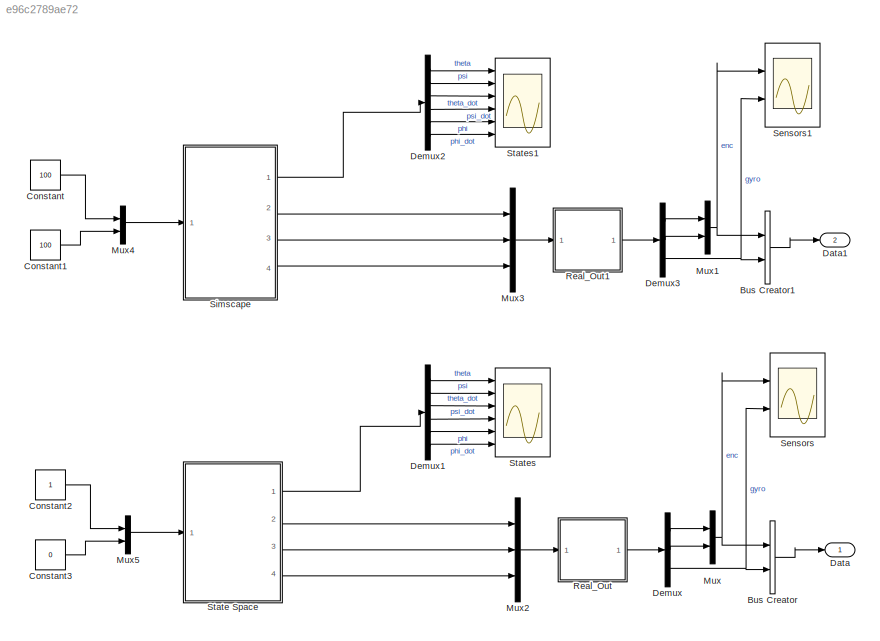
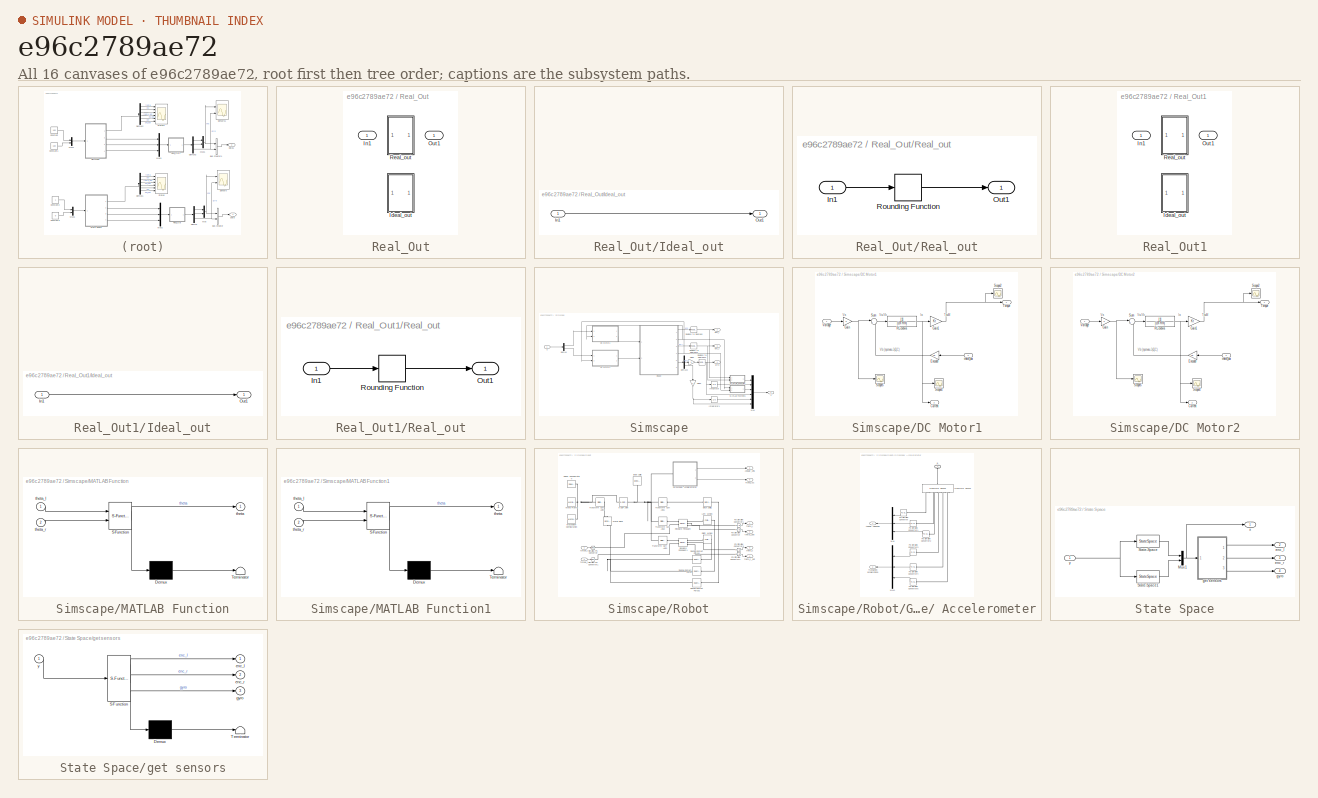
[diagram: thumbnail index - all 16 canvases of the model, root first then tree order]
MODEL slx_e96c2789ae72
KIND model
CONFIG AbsTol = auto
CONFIG EnableMultiTasking = off
CONFIG FixedStep = auto
CONFIG MaxStep = auto
CONFIG MinStep = auto
CONFIG RelTol = 1e-3
CONFIG SampleTimeConstraint = Unconstrained
CONFIG SolverName = ode45
CONFIG StartTime = 0.0
CONFIG StopTime = 10
BLOCK [BusCreator] Bus Creator
  DisplayOption = bar
  InheritFromInputs = on
  Inputs = 2
  OutDataTypeStr = Bus: Data
  Ports = [2, 1]
BLOCK [BusCreator] Bus Creator1
  DisplayOption = bar
  InheritFromInputs = on
  Inputs = 2
  OutDataTypeStr = Bus: Data
  Ports = [2, 1]
BLOCK [Constant] Constant
  Value = 100
BLOCK [Constant] Constant1
  Value = 100
BLOCK [Constant] Constant2
BLOCK [Constant] Constant3
  Value = 0
BLOCK [Outport] Data
BLOCK [Outport] Data1
  Port = 2
BLOCK [Demux] Demux
  Outputs = 3
  Ports = [1, 3]
BLOCK [Demux] Demux1
  Outputs = 6
  Ports = [1, 6]
BLOCK [Demux] Demux2
  Outputs = 6
  Ports = [1, 6]
BLOCK [Demux] Demux3
  Outputs = 3
  Ports = [1, 3]
BLOCK [Mux] Mux
  DisplayOption = bar
  Inputs = 2
  Ports = [2, 1]
BLOCK [Mux] Mux1
  DisplayOption = bar
  Inputs = 2
  Ports = [2, 1]
BLOCK [Mux] Mux2
  DisplayOption = bar
  Inputs = 3
  Ports = [3, 1]
BLOCK [Mux] Mux3
  DisplayOption = bar
  Inputs = 3
  Ports = [3, 1]
BLOCK [Mux] Mux4
  DisplayOption = bar
  Inputs = 2
  Ports = [2, 1]
BLOCK [Mux] Mux5
  DisplayOption = bar
  Inputs = 2
  Ports = [2, 1]
BLOCK [SubSystem] Real_Out
  Ports = [1, 1]
  RequestExecContextInheritance = off
  Variant = on
  VariantControl = Choice
BLOCK [SubSystem] Real_Out/Ideal_out
  Ports = [1, 1]
  RequestExecContextInheritance = off
  VariantControl = (default)
BLOCK [Inport] Real_Out/Ideal_out/In1
BLOCK [Outport] Real_Out/Ideal_out/Out1
BLOCK [Inport] Real_Out/In1
BLOCK [Outport] Real_Out/Out1
BLOCK [SubSystem] Real_Out/Real_out
  Ports = [1, 1]
  RequestExecContextInheritance = off
  VariantControl = real_model == 1
BLOCK [Inport] Real_Out/Real_out/In1
BLOCK [Outport] Real_Out/Real_out/Out1
BLOCK [Rounding] Real_Out/Real_out/Rounding Function
  Operator = round
BLOCK [SubSystem] Real_Out1
  Ports = [1, 1]
  RequestExecContextInheritance = off
  Variant = on
  VariantControl = Choice
BLOCK [SubSystem] Real_Out1/Ideal_out
  Ports = [1, 1]
  RequestExecContextInheritance = off
  VariantControl = (default)
BLOCK [Inport] Real_Out1/Ideal_out/In1
BLOCK [Outport] Real_Out1/Ideal_out/Out1
BLOCK [Inport] Real_Out1/In1
BLOCK [Outport] Real_Out1/Out1
BLOCK [SubSystem] Real_Out1/Real_out
  Ports = [1, 1]
  RequestExecContextInheritance = off
  VariantControl = real_model == 1
BLOCK [Inport] Real_Out1/Real_out/In1
BLOCK [Outport] Real_Out1/Real_out/Out1
BLOCK [Rounding] Real_Out1/Real_out/Rounding Function
  Operator = round
BLOCK [Scope] Sensors
  Floating = off
  NumInputPorts = 2
  Ports = [2]
  ScopeSpecificationString = Simulink.scopes.TimeScopeBlockCfg('CurrentConfiguration', extmgr.ConfigurationSet(extmgr.Configuration('Core','General UI',true),extmgr.Configuration('Core','Source UI',true),extmgr.Configuration('Sources','WiredSimulink',true,'DataLoggingVariableName','ScopeData2'),extmgr.Configuration('Visuals','Time Domain',true,'SerializedDisplays',{struct('MinYLimReal','-0.01037','MaxYLimReal','0.09332','YLab...<+1993ch>
BLOCK [Scope] Sensors1
  Floating = off
  NumInputPorts = 2
  Ports = [2]
  ScopeSpecificationString = Simulink.scopes.TimeScopeBlockCfg('CurrentConfiguration', extmgr.ConfigurationSet(extmgr.Configuration('Core','General UI',true),extmgr.Configuration('Core','Source UI',true),extmgr.Configuration('Sources','WiredSimulink',true),extmgr.Configuration('Visuals','Time Domain',true,'SerializedDisplays',{struct('MinYLimReal','-0.01257','MaxYLimReal','0.1131','YLabelReal','','MinYLimMag','0.00000','MaxYL...<+1955ch>
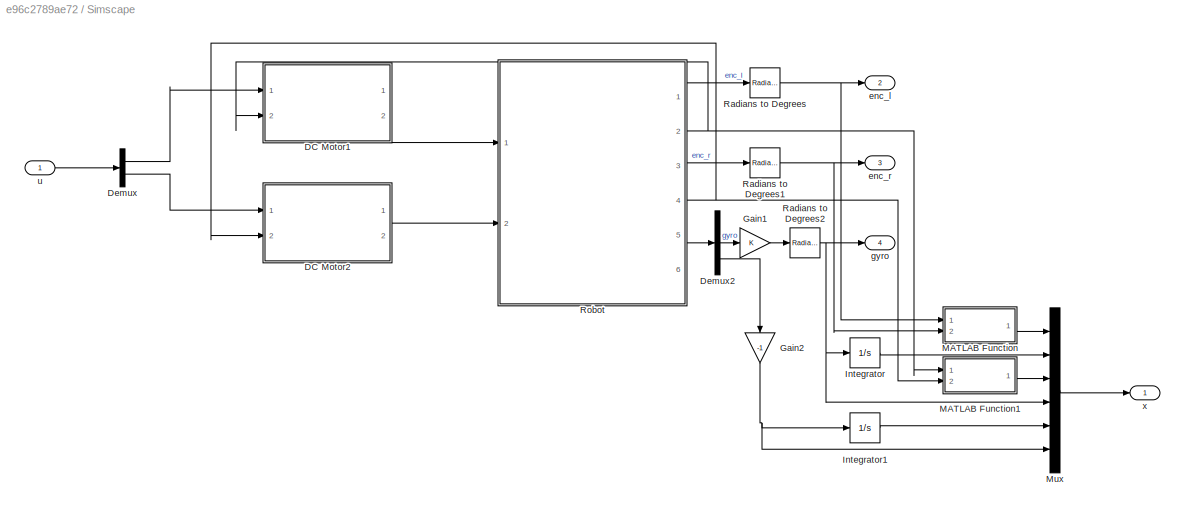
BLOCK [SubSystem] Simscape
  Ports = [1, 4]
  RequestExecContextInheritance = off
BLOCK [SubSystem] Simscape/DC Motor1
  Ports = [2, 2]
  RequestExecContextInheritance = off
BLOCK [Outport] Simscape/DC Motor1/Current
  Port = 2
BLOCK [Gain] Simscape/DC Motor1/Encoder
  Gain = Kb
BLOCK [Gain] Simscape/DC Motor1/Gain
BLOCK [Gain] Simscape/DC Motor1/Gain1
  Gain = Kt
BLOCK [TransferFcn] Simscape/DC Motor1/RL-схема
  Denominator = [Lm Rm]
BLOCK [Scope] Simscape/DC Motor1/Scope2
  Floating = off
  NumInputPorts = 1
  Ports = [1]
  ScopeSpecificationString = Simulink.scopes.TimeScopeBlockCfg('CurrentConfiguration', extmgr.ConfigurationSet(extmgr.Configuration('Core','General UI',true),extmgr.Configuration('Core','Source UI',true),extmgr.Configuration('Sources','WiredSimulink',true,'DataLoggingVariableName','ScopeData1','DataLoggingSaveFormat','StructureWithTime','DataLoggingDecimation','1','DataLoggingDecimateData',true),extmgr.Configuration('Visuals'...<+1665ch>
BLOCK [Scope] Simscape/DC Motor1/Scope4
  Floating = off
  NumInputPorts = 1
  Ports = [1]
  ScopeSpecificationString = Simulink.scopes.TimeScopeBlockCfg('CurrentConfiguration', extmgr.ConfigurationSet(extmgr.Configuration('Core','General UI',true),extmgr.Configuration('Core','Source UI',true),extmgr.Configuration('Sources','WiredSimulink',true,'DataLoggingVariableName','ScopeData5','DataLoggingSaveFormat','StructureWithTime','DataLoggingDecimation','1','DataLoggingDecimateData',true),extmgr.Configuration('Visuals'...<+1680ch>
BLOCK [Scope] Simscape/DC Motor1/Scope5
  Floating = off
  NumInputPorts = 1
  Ports = [1]
  ScopeSpecificationString = Simulink.scopes.TimeScopeBlockCfg('CurrentConfiguration', extmgr.ConfigurationSet(extmgr.Configuration('Core','General UI',true),extmgr.Configuration('Core','Source UI',true),extmgr.Configuration('Sources','WiredSimulink',true,'DataLoggingVariableName','ScopeData6','DataLoggingSaveFormat','StructureWithTime','DataLoggingDecimation','1','DataLoggingDecimateData',true),extmgr.Configuration('Visuals'...<+878ch>
BLOCK [Sum] Simscape/DC Motor1/Sum
  Inputs = |+-
  Ports = [2, 1]
BLOCK [Outport] Simscape/DC Motor1/Torque
BLOCK [Inport] Simscape/DC Motor1/Voltage
BLOCK [Inport] Simscape/DC Motor1/theta_dot
  Port = 2
BLOCK [SubSystem] Simscape/DC Motor2
  Ports = [2, 2]
  RequestExecContextInheritance = off
BLOCK [Outport] Simscape/DC Motor2/Current
  Port = 2
BLOCK [Gain] Simscape/DC Motor2/Encoder
  Gain = Kb
BLOCK [Gain] Simscape/DC Motor2/Gain
BLOCK [Gain] Simscape/DC Motor2/Gain1
  Gain = Kt
BLOCK [TransferFcn] Simscape/DC Motor2/RL-схема
  Denominator = [Lm Rm]
BLOCK [Scope] Simscape/DC Motor2/Scope2
  Floating = off
  NumInputPorts = 1
  Ports = [1]
  ScopeSpecificationString = Simulink.scopes.TimeScopeBlockCfg('CurrentConfiguration', extmgr.ConfigurationSet(extmgr.Configuration('Core','General UI',true),extmgr.Configuration('Core','Source UI',true),extmgr.Configuration('Sources','WiredSimulink',true,'DataLoggingVariableName','ScopeData1','DataLoggingSaveFormat','StructureWithTime','DataLoggingDecimation','1','DataLoggingDecimateData',true),extmgr.Configuration('Visuals'...<+1665ch>
BLOCK [Scope] Simscape/DC Motor2/Scope4
  Floating = off
  NumInputPorts = 1
  Ports = [1]
  ScopeSpecificationString = Simulink.scopes.TimeScopeBlockCfg('CurrentConfiguration', extmgr.ConfigurationSet(extmgr.Configuration('Core','General UI',true),extmgr.Configuration('Core','Source UI',true),extmgr.Configuration('Sources','WiredSimulink',true,'DataLoggingVariableName','ScopeData5','DataLoggingSaveFormat','StructureWithTime','DataLoggingDecimation','1','DataLoggingDecimateData',true),extmgr.Configuration('Visuals'...<+1680ch>
BLOCK [Scope] Simscape/DC Motor2/Scope5
  Floating = off
  NumInputPorts = 1
  Ports = [1]
  ScopeSpecificationString = Simulink.scopes.TimeScopeBlockCfg('CurrentConfiguration', extmgr.ConfigurationSet(extmgr.Configuration('Core','General UI',true),extmgr.Configuration('Core','Source UI',true),extmgr.Configuration('Sources','WiredSimulink',true,'DataLoggingVariableName','ScopeData6','DataLoggingSaveFormat','StructureWithTime','DataLoggingDecimation','1','DataLoggingDecimateData',true),extmgr.Configuration('Visuals'...<+878ch>
BLOCK [Sum] Simscape/DC Motor2/Sum
  Inputs = |+-
  Ports = [2, 1]
BLOCK [Outport] Simscape/DC Motor2/Torque
BLOCK [Inport] Simscape/DC Motor2/Voltage
BLOCK [Inport] Simscape/DC Motor2/theta_dot
  Port = 2
BLOCK [Demux] Simscape/Demux
  Outputs = 2
  Ports = [1, 2]
BLOCK [Demux] Simscape/Demux2
  Outputs = 3
  Ports = [1, 3]
BLOCK [Gain] Simscape/Gain1
BLOCK [Gain] Simscape/Gain2
  Gain = -1
  NameLocation = left
BLOCK [Integrator] Simscape/Integrator
  Ports = [1, 1]
BLOCK [Integrator] Simscape/Integrator1
  Ports = [1, 1]
BLOCK [SubSystem] Simscape/MATLAB Function
  ErrorFcn = Stateflow.Translate.translate
  PermitHierarchicalResolution = ExplicitOnly
  Ports = [2, 1]
  RequestExecContextInheritance = off
  SFBlockType = MATLAB Function
  TreatAsAtomicUnit = on
BLOCK [Demux] Simscape/MATLAB Function/ Demux 
  Outputs = 1
  Ports = [1, 1]
BLOCK [S-Function] Simscape/MATLAB Function/ SFunction 
  EnableBusSupport = on
  FunctionName = sf_sfun
  PortCounts = [2 2]
  Ports = [2, 2]
  SFcnIsStateOwnerBlock = off
  SFunctionDeploymentMode = off
  Tag = Stateflow S-Function 1
BLOCK [Terminator] Simscape/MATLAB Function/ Terminator 
BLOCK [Outport] Simscape/MATLAB Function/theta
BLOCK [Inport] Simscape/MATLAB Function/theta_l
BLOCK [Inport] Simscape/MATLAB Function/theta_r
  Port = 2
BLOCK [SubSystem] Simscape/MATLAB Function1
  ErrorFcn = Stateflow.Translate.translate
  PermitHierarchicalResolution = ExplicitOnly
  Ports = [2, 1]
  RequestExecContextInheritance = off
  SFBlockType = MATLAB Function
  TreatAsAtomicUnit = on
BLOCK [Demux] Simscape/MATLAB Function1/ Demux 
  Outputs = 1
  Ports = [1, 1]
BLOCK [S-Function] Simscape/MATLAB Function1/ SFunction 
  EnableBusSupport = on
  FunctionName = sf_sfun
  PortCounts = [2 2]
  Ports = [2, 2]
  SFcnIsStateOwnerBlock = off
  SFunctionDeploymentMode = off
  Tag = Stateflow S-Function 3
BLOCK [Terminator] Simscape/MATLAB Function1/ Terminator 
BLOCK [Outport] Simscape/MATLAB Function1/theta
BLOCK [Inport] Simscape/MATLAB Function1/theta_l
BLOCK [Inport] Simscape/MATLAB Function1/theta_r
  Port = 2
BLOCK [Mux] Simscape/Mux
  DisplayOption = bar
  Inputs = 6
  Ports = [6, 1]
BLOCK [Reference] Simscape/Radians to Degrees  REF=simulink_extras/Transformations/Radians
to Degrees
  Ports = [1, 1]
  SourceBlock = simulink_extras/Transformations/Radians\nto Degrees
  SourceProductBaseCode = SL
  SourceType = RadiansToDegrees
BLOCK [Reference] Simscape/Radians to Degrees1  REF=simulink_extras/Transformations/Radians
to Degrees
  Ports = [1, 1]
  SourceBlock = simulink_extras/Transformations/Radians\nto Degrees
  SourceProductBaseCode = SL
  SourceType = RadiansToDegrees
BLOCK [Reference] Simscape/Radians to Degrees2  REF=simulink_extras/Transformations/Radians
to Degrees
  Ports = [1, 1]
  SourceBlock = simulink_extras/Transformations/Radians\nto Degrees
  SourceProductBaseCode = SL
  SourceType = RadiansToDegrees
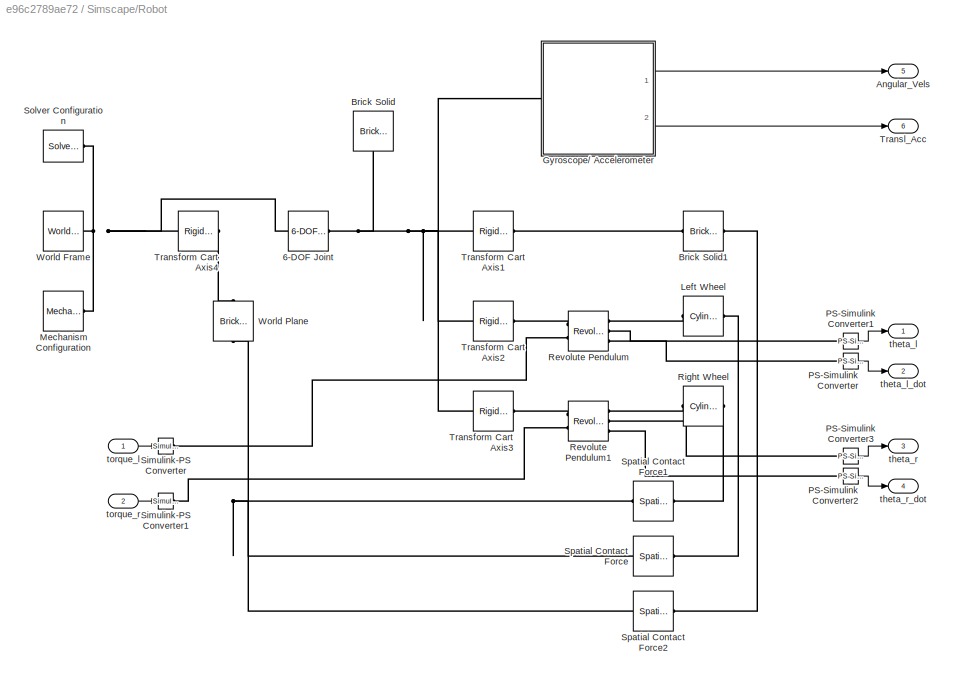
BLOCK [SubSystem] Simscape/Robot
  Ports = [2, 6]
  RequestExecContextInheritance = off
BLOCK [Reference] Simscape/Robot/6-DOF Joint  REF=sm_lib/Joints/6-DOF Joint
  Ports = [0, 0, 0, 0, 0, 1, 1]
  SourceBlock = sm_lib/Joints/6-DOF Joint
  SourceProductBaseCode = MS
  SourceType = 6-DOF Joint
BLOCK [Outport] Simscape/Robot/Angular_Vels
  Port = 5
BLOCK [Reference] Simscape/Robot/Brick Solid  REF=sm_lib/Body Elements/Brick Solid
  NameLocation = left
  Ports = [0, 0, 0, 0, 0, 0, 1]
  SourceBlock = sm_lib/Body Elements/Brick Solid
  SourceProductBaseCode = MS
  SourceType = Brick Solid
BLOCK [Reference] Simscape/Robot/Brick Solid1  REF=sm_lib/Body Elements/Brick Solid
  NameLocation = top
  Ports = [0, 0, 0, 0, 0, 1, 1]
  SourceBlock = sm_lib/Body Elements/Brick Solid
  SourceProductBaseCode = MS
  SourceType = Brick Solid
BLOCK [SubSystem] Simscape/Robot/Gyroscope// Accelerometer
  Ports = [0, 2, 0, 0, 0, 1]
  RequestExecContextInheritance = off
BLOCK [Outport] Simscape/Robot/Gyroscope// Accelerometer/Angular velocities
BLOCK [PMIOPort] Simscape/Robot/Gyroscope// Accelerometer/B
  NameLocation = right
  Side = Left
BLOCK [Mux] Simscape/Robot/Gyroscope// Accelerometer/Mux
  DisplayOption = bar
  Inputs = 3
  NameLocation = top
  Ports = [3, 1]
BLOCK [Mux] Simscape/Robot/Gyroscope// Accelerometer/Mux1
  DisplayOption = bar
  Inputs = 3
  NameLocation = top
  Ports = [3, 1]
BLOCK [Reference] Simscape/Robot/Gyroscope// Accelerometer/PS-Simulink Converter  REF=nesl_utility/PS-Simulink
Converter
  Ports = [0, 1, 0, 0, 0, 1]
  SourceBlock = nesl_utility/PS-Simulink\nConverter
  SourceProductBaseCode = PW,SS
  SourceType = PS-Simulink\nConverter
BLOCK [Reference] Simscape/Robot/Gyroscope// Accelerometer/PS-Simulink Converter1  REF=nesl_utility/PS-Simulink
Converter
  Ports = [0, 1, 0, 0, 0, 1]
  SourceBlock = nesl_utility/PS-Simulink\nConverter
  SourceProductBaseCode = PW,SS
  SourceType = PS-Simulink\nConverter
BLOCK [Reference] Simscape/Robot/Gyroscope// Accelerometer/PS-Simulink Converter2  REF=nesl_utility/PS-Simulink
Converter
  Ports = [0, 1, 0, 0, 0, 1]
  SourceBlock = nesl_utility/PS-Simulink\nConverter
  SourceProductBaseCode = PW,SS
  SourceType = PS-Simulink\nConverter
BLOCK [Reference] Simscape/Robot/Gyroscope// Accelerometer/PS-Simulink Converter3  REF=nesl_utility/PS-Simulink
Converter
  Ports = [0, 1, 0, 0, 0, 1]
  SourceBlock = nesl_utility/PS-Simulink\nConverter
  SourceProductBaseCode = PW,SS
  SourceType = PS-Simulink\nConverter
BLOCK [Reference] Simscape/Robot/Gyroscope// Accelerometer/PS-Simulink Converter4  REF=nesl_utility/PS-Simulink
Converter
  Ports = [0, 1, 0, 0, 0, 1]
  SourceBlock = nesl_utility/PS-Simulink\nConverter
  SourceProductBaseCode = PW,SS
  SourceType = PS-Simulink\nConverter
BLOCK [Reference] Simscape/Robot/Gyroscope// Accelerometer/PS-Simulink Converter5  REF=nesl_utility/PS-Simulink
Converter
  Ports = [0, 1, 0, 0, 0, 1]
  SourceBlock = nesl_utility/PS-Simulink\nConverter
  SourceProductBaseCode = PW,SS
  SourceType = PS-Simulink\nConverter
BLOCK [Reference] Simscape/Robot/Gyroscope// Accelerometer/Transform Sensor  REF=sm_lib/Frames and
Transforms/Transform
Sensor
  NameLocation = left
  Ports = [0, 0, 0, 0, 0, 1, 7]
  SourceBlock = sm_lib/Frames and\nTransforms/Transform\nSensor
  SourceProductBaseCode = MS
  SourceType = Transform\nSensor
BLOCK [Outport] Simscape/Robot/Gyroscope// Accelerometer/Translation accelerations
  Port = 2
BLOCK [Reference] Simscape/Robot/Left Wheel  REF=sm_lib/Body Elements/Cylindrical Solid
  NameLocation = top
  Ports = [0, 0, 0, 0, 0, 1, 1]
  SourceBlock = sm_lib/Body Elements/Cylindrical Solid
  SourceProductBaseCode = MS
  SourceType = Cylindrical Solid
BLOCK [Reference] Simscape/Robot/Mechanism Configuration  REF=sm_lib/Utilities/Mechanism
Configuration
  Ports = [0, 0, 0, 0, 0, 0, 1]
  SourceBlock = sm_lib/Utilities/Mechanism\nConfiguration
  SourceProductBaseCode = MS
  SourceType = Mechanism\nConfiguration
BLOCK [Reference] Simscape/Robot/PS-Simulink Converter  REF=nesl_utility/PS-Simulink
Converter
  Ports = [0, 1, 0, 0, 0, 1]
  SourceBlock = nesl_utility/PS-Simulink\nConverter
  SourceProductBaseCode = SS,PW,VE
  SourceType = PS-Simulink\nConverter
BLOCK [Reference] Simscape/Robot/PS-Simulink Converter1  REF=nesl_utility/PS-Simulink
Converter
  Ports = [0, 1, 0, 0, 0, 1]
  SourceBlock = nesl_utility/PS-Simulink\nConverter
  SourceProductBaseCode = SS,PW,VE
  SourceType = PS-Simulink\nConverter
BLOCK [Reference] Simscape/Robot/PS-Simulink Converter2  REF=nesl_utility/PS-Simulink
Converter
  Ports = [0, 1, 0, 0, 0, 1]
  SourceBlock = nesl_utility/PS-Simulink\nConverter
  SourceProductBaseCode = SS,PW,VE
  SourceType = PS-Simulink\nConverter
BLOCK [Reference] Simscape/Robot/PS-Simulink Converter3  REF=nesl_utility/PS-Simulink
Converter
  Ports = [0, 1, 0, 0, 0, 1]
  SourceBlock = nesl_utility/PS-Simulink\nConverter
  SourceProductBaseCode = SS,PW,VE
  SourceType = PS-Simulink\nConverter
BLOCK [Reference] Simscape/Robot/Revolute Pendulum  REF=sm_lib/Joints/Revolute Joint
  Ports = [0, 0, 0, 0, 0, 2, 3]
  SourceBlock = sm_lib/Joints/Revolute Joint
  SourceProductBaseCode = MS
  SourceType = Revolute Joint
BLOCK [Reference] Simscape/Robot/Revolute Pendulum1  REF=sm_lib/Joints/Revolute Joint
  Ports = [0, 0, 0, 0, 0, 2, 3]
  SourceBlock = sm_lib/Joints/Revolute Joint
  SourceProductBaseCode = MS
  SourceType = Revolute Joint
BLOCK [Reference] Simscape/Robot/Right Wheel  REF=sm_lib/Body Elements/Cylindrical Solid
  NameLocation = top
  Ports = [0, 0, 0, 0, 0, 1, 1]
  SourceBlock = sm_lib/Body Elements/Cylindrical Solid
  SourceProductBaseCode = MS
  SourceType = Cylindrical Solid
BLOCK [Reference] Simscape/Robot/Simulink-PS Converter  REF=nesl_utility/Simulink-PS
Converter
  Ports = [1, 0, 0, 0, 0, 0, 1]
  SourceBlock = nesl_utility/Simulink-PS\nConverter
  SourceProductBaseCode = SS,PW,VE
  SourceType = Simulink-PS\nConverter
BLOCK [Reference] Simscape/Robot/Simulink-PS Converter1  REF=nesl_utility/Simulink-PS
Converter
  Ports = [1, 0, 0, 0, 0, 0, 1]
  SourceBlock = nesl_utility/Simulink-PS\nConverter
  SourceProductBaseCode = SS,PW,VE
  SourceType = Simulink-PS\nConverter
BLOCK [Reference] Simscape/Robot/Solver Configuration  REF=nesl_utility/Solver
Configuration
  Ports = [0, 0, 0, 0, 0, 0, 1]
  SourceBlock = nesl_utility/Solver\nConfiguration
  SourceProductBaseCode = SS,PW,VE
  SourceType = Solver\nConfiguration
BLOCK [Reference] Simscape/Robot/Spatial Contact Force  REF=sm_lib/Forces and
Torques/Spatial
Contact Force
  Ports = [0, 0, 0, 0, 0, 1, 1]
  SourceBlock = sm_lib/Forces and\nTorques/Spatial\nContact Force
  SourceProductBaseCode = MS
  SourceType = Spatial\nContact Force
BLOCK [Reference] Simscape/Robot/Spatial Contact Force1  REF=sm_lib/Forces and
Torques/Spatial
Contact Force
  Ports = [0, 0, 0, 0, 0, 1, 1]
  SourceBlock = sm_lib/Forces and\nTorques/Spatial\nContact Force
  SourceProductBaseCode = MS
  SourceType = Spatial\nContact Force
BLOCK [Reference] Simscape/Robot/Spatial Contact Force2  REF=sm_lib/Forces and
Torques/Spatial
Contact Force
  Ports = [0, 0, 0, 0, 0, 1, 1]
  SourceBlock = sm_lib/Forces and\nTorques/Spatial\nContact Force
  SourceProductBaseCode = MS
  SourceType = Spatial\nContact Force
BLOCK [Reference] Simscape/Robot/Transform Cart Axis1  REF=sm_lib/Frames and
Transforms/Rigid
Transform
  Ports = [0, 0, 0, 0, 0, 1, 1]
  SourceBlock = sm_lib/Frames and\nTransforms/Rigid\nTransform
  SourceProductBaseCode = MS
  SourceType = Rigid\nTransform
BLOCK [Reference] Simscape/Robot/Transform Cart Axis2  REF=sm_lib/Frames and
Transforms/Rigid
Transform
  Ports = [0, 0, 0, 0, 0, 1, 1]
  SourceBlock = sm_lib/Frames and\nTransforms/Rigid\nTransform
  SourceProductBaseCode = MS
  SourceType = Rigid\nTransform
BLOCK [Reference] Simscape/Robot/Transform Cart Axis3  REF=sm_lib/Frames and
Transforms/Rigid
Transform
  Ports = [0, 0, 0, 0, 0, 1, 1]
  SourceBlock = sm_lib/Frames and\nTransforms/Rigid\nTransform
  SourceProductBaseCode = MS
  SourceType = Rigid\nTransform
BLOCK [Reference] Simscape/Robot/Transform Cart Axis4  REF=sm_lib/Frames and
Transforms/Rigid
Transform
  Ports = [0, 0, 0, 0, 0, 1, 1]
  SourceBlock = sm_lib/Frames and\nTransforms/Rigid\nTransform
  SourceProductBaseCode = MS
  SourceType = Rigid\nTransform
BLOCK [Outport] Simscape/Robot/Transl_Acc
  Port = 6
BLOCK [Reference] Simscape/Robot/World Frame  REF=sm_lib/Frames and
Transforms/World Frame
  Ports = [0, 0, 0, 0, 0, 0, 1]
  SourceBlock = sm_lib/Frames and\nTransforms/World Frame
  SourceProductBaseCode = MS
  SourceType = World Frame
BLOCK [Reference] Simscape/Robot/World Plane  REF=sm_lib/Body Elements/Brick Solid
  NameLocation = right
  Ports = [0, 0, 0, 0, 0, 1, 1]
  SourceBlock = sm_lib/Body Elements/Brick Solid
  SourceProductBaseCode = MS
  SourceType = Brick Solid
BLOCK [Outport] Simscape/Robot/theta_l
BLOCK [Outport] Simscape/Robot/theta_l_dot
  Port = 2
BLOCK [Outport] Simscape/Robot/theta_r
  Port = 3
BLOCK [Outport] Simscape/Robot/theta_r_dot
  Port = 4
BLOCK [Inport] Simscape/Robot/torque_l
BLOCK [Inport] Simscape/Robot/torque_r
  Port = 2
BLOCK [Outport] Simscape/enc_l
  Port = 2
BLOCK [Outport] Simscape/enc_r
  Port = 3
BLOCK [Outport] Simscape/gyro
  Port = 4
BLOCK [Inport] Simscape/u
BLOCK [Outport] Simscape/x
BLOCK [SubSystem] State Space
  Ports = [1, 4]
  RequestExecContextInheritance = off
BLOCK [Mux] State Space/Mux1
  DisplayOption = bar
  Inputs = 2
  Ports = [2, 1]
BLOCK [StateSpace] State Space/State-Space
  A = A1
  B = B1
  C = C1
  D = D1
  InitialCondition = 0
  Ports = [1, 1]
BLOCK [StateSpace] State Space/State-Space1
  A = A2
  B = B2
  C = C2
  D = D2
  InitialCondition = 0
  Ports = [1, 1]
BLOCK [Outport] State Space/enc_l
  Port = 2
BLOCK [Outport] State Space/enc_r
  Port = 3
BLOCK [SubSystem] State Space/get sensors
  ErrorFcn = Stateflow.Translate.translate
  PermitHierarchicalResolution = ExplicitOnly
  Ports = [1, 3]
  RequestExecContextInheritance = off
  SFBlockType = MATLAB Function
  TreatAsAtomicUnit = on
BLOCK [Demux] State Space/get sensors/ Demux 
  Outputs = 1
  Ports = [1, 1]
BLOCK [S-Function] State Space/get sensors/ SFunction 
  EnableBusSupport = on
  FunctionName = sf_sfun
  Parameters = R,W
  PortCounts = [1 4]
  Ports = [1, 4]
  SFcnIsStateOwnerBlock = off
  SFunctionDeploymentMode = off
  Tag = Stateflow S-Function 2
BLOCK [Terminator] State Space/get sensors/ Terminator 
BLOCK [Outport] State Space/get sensors/enc_l
  VectorParamsAs1DForOutWhenUnconnected = off
BLOCK [Outport] State Space/get sensors/enc_r
  Port = 2
  VectorParamsAs1DForOutWhenUnconnected = off
BLOCK [Outport] State Space/get sensors/gyro
  Port = 3
  VectorParamsAs1DForOutWhenUnconnected = off
BLOCK [Inport] State Space/get sensors/y
BLOCK [Outport] State Space/gyro
  Port = 4
BLOCK [Outport] State Space/x
BLOCK [Inport] State Space/y
BLOCK [Scope] States
  Floating = off
  NumInputPorts = 6
  Ports = [6]
  ScopeSpecificationString = Simulink.scopes.TimeScopeBlockCfg('CurrentConfiguration', extmgr.ConfigurationSet(extmgr.Configuration('Core','General UI',true),extmgr.Configuration('Core','Source UI',true),extmgr.Configuration('Sources','WiredSimulink',true,'DataLoggingVariableName','ScopeData3'),extmgr.Configuration('Visuals','Time Domain',true,'SerializedDisplays',{struct('MinYLimReal','-0.00011','MaxYLimReal','0.00095','YLab...<+5185ch>
BLOCK [Scope] States1
  Floating = off
  NumInputPorts = 6
  Ports = [6]
  ScopeSpecificationString = Simulink.scopes.TimeScopeBlockCfg('CurrentConfiguration', extmgr.ConfigurationSet(extmgr.Configuration('Core','General UI',true),extmgr.Configuration('Core','Source UI',true),extmgr.Configuration('Sources','WiredSimulink',true,'DataLoggingVariableName','ScopeData4'),extmgr.Configuration('Visuals','Time Domain',true,'SerializedDisplays',{struct('MinYLimReal','-0.36026','MaxYLimReal','3.24236','YLab...<+5187ch>
ANNOTATION Simscape/DC Motor1: Ia
ANNOTATION Simscape/DC Motor1: TauM
ANNOTATION Simscape/DC Motor1: Va
ANNOTATION Simscape/DC Motor1: Va-Vb
ANNOTATION Simscape/DC Motor1: Vb (противо-ЭДС)
ANNOTATION Simscape/DC Motor2: Ia
ANNOTATION Simscape/DC Motor2: TauM
ANNOTATION Simscape/DC Motor2: Va
ANNOTATION Simscape/DC Motor2: Va-Vb
ANNOTATION Simscape/DC Motor2: Vb (противо-ЭДС)
LINE Bus Creator1:1 -> Data1:1
LINE Bus Creator:1 -> Data:1
LINE Constant1:1 -> Mux4:2
LINE Constant2:1 -> Mux5:1
LINE Constant3:1 -> Mux5:2
LINE Constant:1 -> Mux4:1
LINE Demux1:1 -> States:1
LINE Demux1:2 -> States:2
LINE Demux1:3 -> States:3
LINE Demux1:4 -> States:4
LINE Demux1:5 -> States:5
LINE Demux1:6 -> States:6
LINE Demux2:1 -> States1:1
LINE Demux2:2 -> States1:2
LINE Demux2:3 -> States1:3
LINE Demux2:4 -> States1:4
LINE Demux2:5 -> States1:5
LINE Demux2:6 -> States1:6
LINE Demux3:1 -> Mux1:1
LINE Demux3:2 -> Mux1:2
NET Demux3:3 -> Bus Creator1:2, Sensors1:2
LINE Demux:1 -> Mux:1
LINE Demux:2 -> Mux:2
NET Demux:3 -> Bus Creator:2, Sensors:2
NET Mux1:1 -> Bus Creator1:1, Sensors1:1
LINE Mux2:1 -> Real_Out:1
LINE Mux3:1 -> Real_Out1:1
LINE Mux4:1 -> Simscape:1
LINE Mux5:1 -> State Space:1
NET Mux:1 -> Bus Creator:1, Sensors:1
LINE Real_Out/Ideal_out/In1:1 -> Real_Out/Ideal_out/Out1:1
LINE Real_Out/Real_out/In1:1 -> Real_Out/Real_out/Rounding Function:1
LINE Real_Out/Real_out/Rounding Function:1 -> Real_Out/Real_out/Out1:1
LINE Real_Out1/Ideal_out/In1:1 -> Real_Out1/Ideal_out/Out1:1
LINE Real_Out1/Real_out/In1:1 -> Real_Out1/Real_out/Rounding Function:1
LINE Real_Out1/Real_out/Rounding Function:1 -> Real_Out1/Real_out/Out1:1
LINE Real_Out1:1 -> Demux3:1
LINE Real_Out:1 -> Demux:1
LINE Simscape/DC Motor1/Encoder:1 -> Simscape/DC Motor1/Sum:2
NET Simscape/DC Motor1/Gain1:1 -> Simscape/DC Motor1/Scope2:1, Simscape/DC Motor1/Torque:1
NET Simscape/DC Motor1/Gain:1 -> Simscape/DC Motor1/Scope5:1, Simscape/DC Motor1/Sum:1
NET Simscape/DC Motor1/RL-схема:1 -> Simscape/DC Motor1/Current:1, Simscape/DC Motor1/Gain1:1, Simscape/DC Motor1/Scope4:1
LINE Simscape/DC Motor1/Sum:1 -> Simscape/DC Motor1/RL-схема:1
LINE Simscape/DC Motor1/Voltage:1 -> Simscape/DC Motor1/Gain:1
LINE Simscape/DC Motor1/theta_dot:1 -> Simscape/DC Motor1/Encoder:1
LINE Simscape/DC Motor1:2 -> Simscape/Robot:1
LINE Simscape/DC Motor2/Encoder:1 -> Simscape/DC Motor2/Sum:2
NET Simscape/DC Motor2/Gain1:1 -> Simscape/DC Motor2/Scope2:1, Simscape/DC Motor2/Torque:1
NET Simscape/DC Motor2/Gain:1 -> Simscape/DC Motor2/Scope5:1, Simscape/DC Motor2/Sum:1
NET Simscape/DC Motor2/RL-схема:1 -> Simscape/DC Motor2/Current:1, Simscape/DC Motor2/Gain1:1, Simscape/DC Motor2/Scope4:1
LINE Simscape/DC Motor2/Sum:1 -> Simscape/DC Motor2/RL-схема:1
LINE Simscape/DC Motor2/Voltage:1 -> Simscape/DC Motor2/Gain:1
LINE Simscape/DC Motor2/theta_dot:1 -> Simscape/DC Motor2/Encoder:1
LINE Simscape/DC Motor2:2 -> Simscape/Robot:2
LINE Simscape/Demux2:2 -> Simscape/Gain1:1
LINE Simscape/Demux2:3 -> Simscape/Gain2:1
LINE Simscape/Demux:1 -> Simscape/DC Motor1:1
LINE Simscape/Demux:2 -> Simscape/DC Motor2:1
LINE Simscape/Gain1:1 -> Simscape/Radians to Degrees2:1
NET Simscape/Gain2:1 -> Simscape/Integrator1:1, Simscape/Mux:6
LINE Simscape/Integrator1:1 -> Simscape/Mux:5
LINE Simscape/Integrator:1 -> Simscape/Mux:2
LINE Simscape/MATLAB Function1:1 -> Simscape/Mux:3
LINE Simscape/MATLAB Function:1 -> Simscape/Mux:1
LINE Simscape/Mux:1 -> Simscape/x:1
NET Simscape/Radians to Degrees1:1 -> Simscape/MATLAB Function:2, Simscape/enc_r:1
NET Simscape/Radians to Degrees2:1 -> Simscape/Integrator:1, Simscape/Mux:4, Simscape/gyro:1
NET Simscape/Radians to Degrees:1 -> Simscape/MATLAB Function:1, Simscape/enc_l:1
LINE Simscape/Robot/Gyroscope// Accelerometer/Mux1:1 -> Simscape/Robot/Gyroscope// Accelerometer/Translation accelerations:1
LINE Simscape/Robot/Gyroscope// Accelerometer/Mux:1 -> Simscape/Robot/Gyroscope// Accelerometer/Angular velocities:1
LINE Simscape/Robot/Gyroscope// Accelerometer/PS-Simulink Converter1:1 -> Simscape/Robot/Gyroscope// Accelerometer/Mux:2
LINE Simscape/Robot/Gyroscope// Accelerometer/PS-Simulink Converter2:1 -> Simscape/Robot/Gyroscope// Accelerometer/Mux:3
LINE Simscape/Robot/Gyroscope// Accelerometer/PS-Simulink Converter3:1 -> Simscape/Robot/Gyroscope// Accelerometer/Mux1:1
LINE Simscape/Robot/Gyroscope// Accelerometer/PS-Simulink Converter4:1 -> Simscape/Robot/Gyroscope// Accelerometer/Mux1:2
LINE Simscape/Robot/Gyroscope// Accelerometer/PS-Simulink Converter5:1 -> Simscape/Robot/Gyroscope// Accelerometer/Mux1:3
LINE Simscape/Robot/Gyroscope// Accelerometer/PS-Simulink Converter:1 -> Simscape/Robot/Gyroscope// Accelerometer/Mux:1
LINE Simscape/Robot/Gyroscope// Accelerometer:1 -> Simscape/Robot/Angular_Vels:1
LINE Simscape/Robot/Gyroscope// Accelerometer:2 -> Simscape/Robot/Transl_Acc:1
LINE Simscape/Robot/PS-Simulink Converter1:1 -> Simscape/Robot/theta_l:1
LINE Simscape/Robot/PS-Simulink Converter2:1 -> Simscape/Robot/theta_r_dot:1
LINE Simscape/Robot/PS-Simulink Converter3:1 -> Simscape/Robot/theta_r:1
LINE Simscape/Robot/PS-Simulink Converter:1 -> Simscape/Robot/theta_l_dot:1
LINE Simscape/Robot/torque_l:1 -> Simscape/Robot/Simulink-PS Converter:1
LINE Simscape/Robot/torque_r:1 -> Simscape/Robot/Simulink-PS Converter1:1
LINE Simscape/Robot:1 -> Simscape/Radians to Degrees:1
NET Simscape/Robot:2 -> Simscape/DC Motor1:2, Simscape/MATLAB Function1:1
LINE Simscape/Robot:3 -> Simscape/Radians to Degrees1:1
NET Simscape/Robot:4 -> Simscape/DC Motor2:2, Simscape/MATLAB Function1:2
LINE Simscape/Robot:5 -> Simscape/Demux2:1
LINE Simscape/u:1 -> Simscape/Demux:1
LINE Simscape:1 -> Demux2:1
LINE Simscape:2 -> Mux3:1
LINE Simscape:3 -> Mux3:2
LINE Simscape:4 -> Mux3:3
NET State Space/Mux1:1 -> State Space/get sensors:1, State Space/x:1
LINE State Space/State-Space1:1 -> State Space/Mux1:2
LINE State Space/State-Space:1 -> State Space/Mux1:1
LINE State Space/get sensors:1 -> State Space/enc_l:1
LINE State Space/get sensors:2 -> State Space/enc_r:1
LINE State Space/get sensors:3 -> State Space/gyro:1
NET State Space/y:1 -> State Space/State-Space1:1, State Space/State-Space:1
LINE State Space:1 -> Demux1:1
LINE State Space:2 -> Mux2:1
LINE State Space:3 -> Mux2:2
LINE State Space:4 -> Mux2:3
PNET net1: Simscape/Robot/6-DOF Joint:LConn1 -- Simscape/Robot/Mechanism Configuration:RConn1 -- Simscape/Robot/Solver Configuration:RConn1 -- Simscape/Robot/Transform Cart Axis4:LConn1 -- Simscape/Robot/World Frame:RConn1
PNET net2: Simscape/Robot/6-DOF Joint:RConn1 -- Simscape/Robot/Brick Solid:RConn1 -- Simscape/Robot/Gyroscope// Accelerometer:LConn1 -- Simscape/Robot/Transform Cart Axis1:LConn1 -- Simscape/Robot/Transform Cart Axis2:LConn1 -- Simscape/Robot/Transform Cart Axis3:LConn1
PLINE Simscape/Robot/Brick Solid1:LConn1 -- Simscape/Robot/Spatial Contact Force2:RConn1
PLINE Simscape/Robot/Brick Solid1:RConn1 -- Simscape/Robot/Transform Cart Axis1:RConn1
PLINE Simscape/Robot/Gyroscope// Accelerometer/B:RConn1 -- Simscape/Robot/Gyroscope// Accelerometer/Transform Sensor:LConn1
PLINE Simscape/Robot/Gyroscope// Accelerometer/PS-Simulink Converter1:LConn1 -- Simscape/Robot/Gyroscope// Accelerometer/Transform Sensor:RConn3
PLINE Simscape/Robot/Gyroscope// Accelerometer/PS-Simulink Converter2:LConn1 -- Simscape/Robot/Gyroscope// Accelerometer/Transform Sensor:RConn4
PLINE Simscape/Robot/Gyroscope// Accelerometer/PS-Simulink Converter3:LConn1 -- Simscape/Robot/Gyroscope// Accelerometer/Transform Sensor:RConn5
PLINE Simscape/Robot/Gyroscope// Accelerometer/PS-Simulink Converter4:LConn1 -- Simscape/Robot/Gyroscope// Accelerometer/Transform Sensor:RConn6
PLINE Simscape/Robot/Gyroscope// Accelerometer/PS-Simulink Converter5:LConn1 -- Simscape/Robot/Gyroscope// Accelerometer/Transform Sensor:RConn7
PLINE Simscape/Robot/Gyroscope// Accelerometer/PS-Simulink Converter:LConn1 -- Simscape/Robot/Gyroscope// Accelerometer/Transform Sensor:RConn2
PLINE Simscape/Robot/Left Wheel:LConn1 -- Simscape/Robot/Spatial Contact Force:RConn1
PLINE Simscape/Robot/Left Wheel:RConn1 -- Simscape/Robot/Revolute Pendulum:RConn1
PLINE Simscape/Robot/PS-Simulink Converter1:LConn1 -- Simscape/Robot/Revolute Pendulum:RConn2
PLINE Simscape/Robot/PS-Simulink Converter2:LConn1 -- Simscape/Robot/Revolute Pendulum1:RConn3
PLINE Simscape/Robot/PS-Simulink Converter3:LConn1 -- Simscape/Robot/Revolute Pendulum1:RConn2
PLINE Simscape/Robot/PS-Simulink Converter:LConn1 -- Simscape/Robot/Revolute Pendulum:RConn3
PLINE Simscape/Robot/Revolute Pendulum1:LConn1 -- Simscape/Robot/Transform Cart Axis3:RConn1
PLINE Simscape/Robot/Revolute Pendulum1:LConn2 -- Simscape/Robot/Simulink-PS Converter1:RConn1
PLINE Simscape/Robot/Revolute Pendulum1:RConn1 -- Simscape/Robot/Right Wheel:RConn1
PLINE Simscape/Robot/Revolute Pendulum:LConn1 -- Simscape/Robot/Transform Cart Axis2:RConn1
PLINE Simscape/Robot/Revolute Pendulum:LConn2 -- Simscape/Robot/Simulink-PS Converter:RConn1
PLINE Simscape/Robot/Right Wheel:LConn1 -- Simscape/Robot/Spatial Contact Force1:RConn1
PNET net3: Simscape/Robot/Spatial Contact Force1:LConn1 -- Simscape/Robot/Spatial Contact Force2:LConn1 -- Simscape/Robot/Spatial Contact Force:LConn1 -- Simscape/Robot/World Plane:LConn1
PLINE Simscape/Robot/Transform Cart Axis4:RConn1 -- Simscape/Robot/World Plane:RConn1
note: NET lines group one-source signal fan-out (src -> all destinations, sorted); 1:1 wires keep LINE; PNET lines group multi-terminal physical nets as a canonical sorted terminal list (undirected conserving connections); 2-terminal nets keep the pairwise PLINE form
CHART Simscape/MATLAB Function states=1 transitions=1
  STATE_LABEL 'eML_blk_kernel()'
  STATE_LABEL 'SCRIPT:\nfunction theta = fcn(theta_l, theta_r)\n\ntheta = rad2deg((theta_l + theta_r)/2);\n'
CHART State Space/get sensors states=1 transitions=1
  STATE_LABEL 'eML_blk_kernel()'
  STATE_LABEL 'SCRIPT:\nfunction [enc_l, enc_r, gyro] = sensors(y, R, W)\nenc_l = rad2deg(y(1) - W/R/2 * y(5) - y(2));\nenc_r = rad2deg(y(1) + W/R/2 * y(5) - y(2));\ngyro  = rad2deg(y(4));'
CHART Simscape/MATLAB Function1 states=1 transitions=1
  STATE_LABEL 'eML_blk_kernel()'
  STATE_LABEL 'SCRIPT:\nfunction theta = fcn(theta_l, theta_r)\n\ntheta = (theta_l + theta_r)/2;\n'
CHART  states=0 transitions=0
CHART  states=0 transitions=0
CHART  states=0 transitions=0
